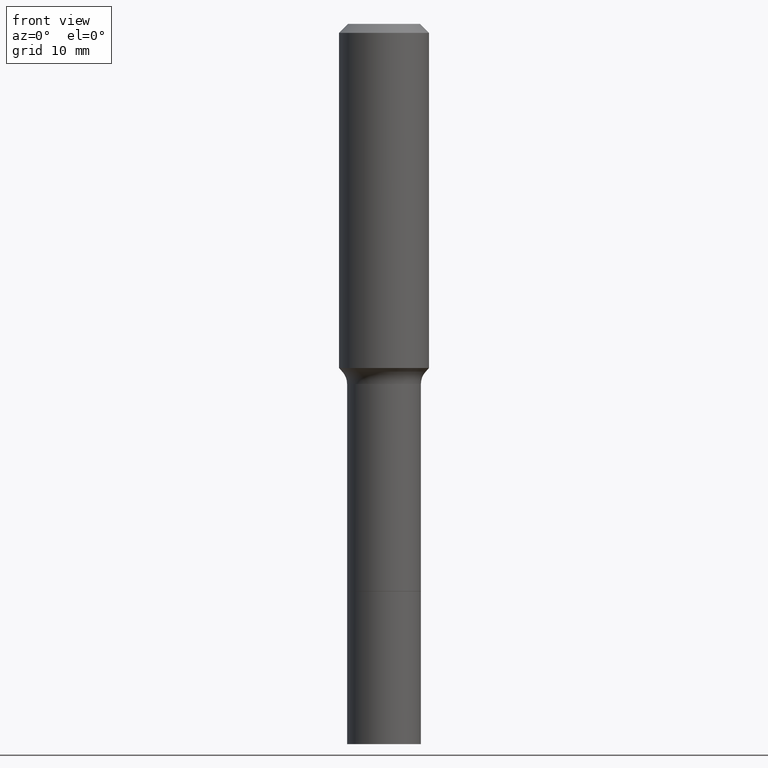
[diagram: clean part render]
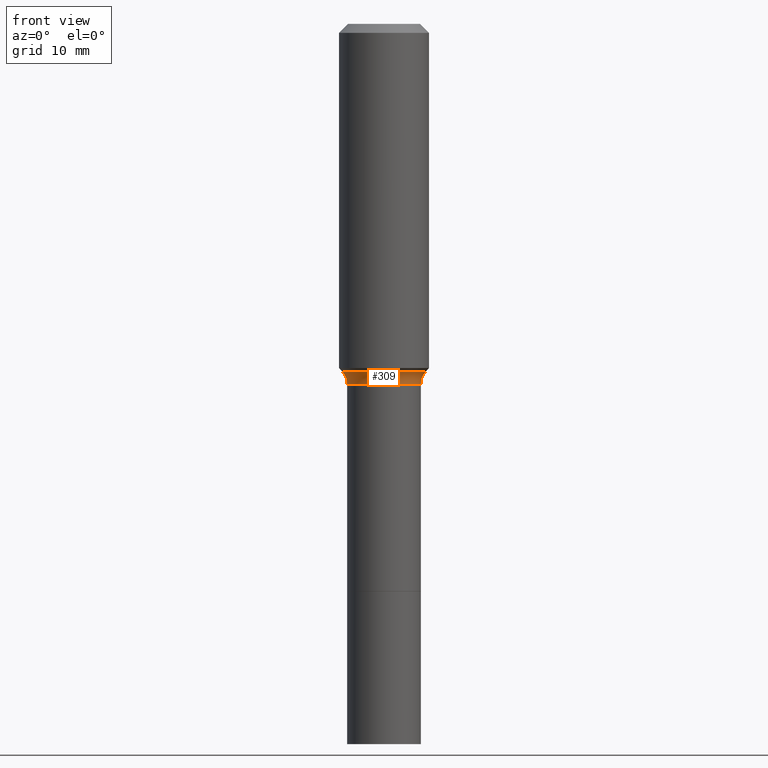
[diagram: same view with one face highlighted and labeled with its STEP entity id]
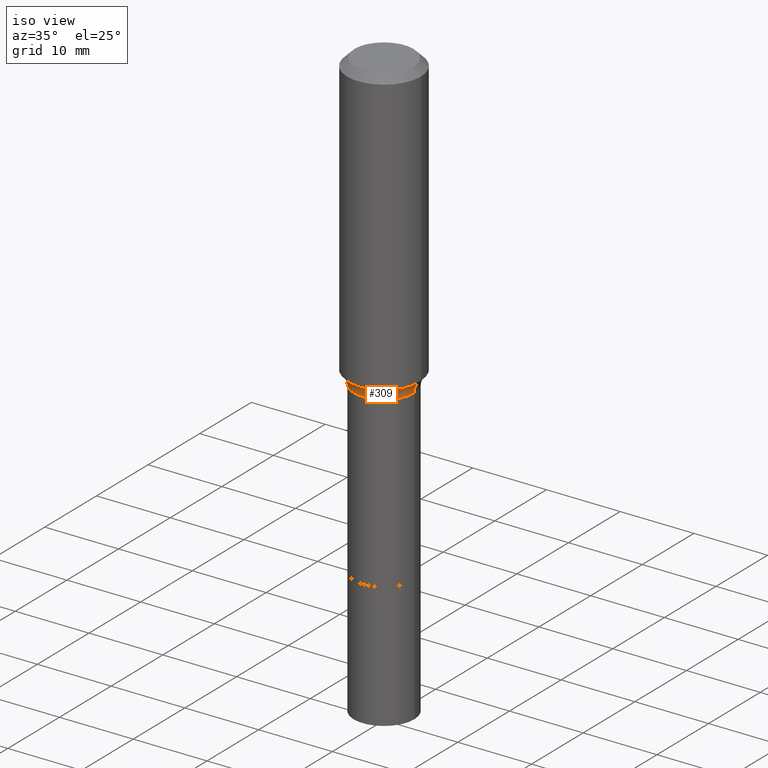
[diagram: same view with one face highlighted and labeled with its STEP entity id]
A machine part, front view. The second image highlights one B-rep face of the part: STEP entity #309.
A second angle (iso view) of the same face is appended — the face is thin or edge-on in the first view.
In plain terms, the highlighted toroidal blend (fillet) surface has major radius 6.1316 mm and minor (blend) radius 2.032 mm.
Its self-contained STEP definition (entity closure, byte-faithful):
#6 = DIRECTION ( 'NONE',  ( 1.000000000000000000, -6.982962677686265133E-15, 4.883557194083112340E-29 ) ) ;
#13 = CARTESIAN_POINT ( 'NONE',  ( 0.2413999999999999202, -7.183373706535882142E-15, -1.574600000000000222 ) ) ;
#33 = CARTESIAN_POINT ( 'NONE',  ( 3.717210724986935455E-29, -5.307191752360029493E-15, -1.520040131195000033 ) ) ;
#48 = VERTEX_POINT ( 'NONE', #431 ) ;
#49 = DIRECTION ( 'NONE',  ( -6.982962677686266711E-15, -1.000000000000000000, 3.491481338843145583E-15 ) ) ;
#62 = CIRCLE ( 'NONE', #458, 0.1613999999999998769 ) ;
#65 = DIRECTION ( 'NONE',  ( -2.445468806185136597E-29, 3.491481338843145583E-15, 1.000000000000000000 ) ) ;
#75 = EDGE_CURVE ( 'NONE', #101, #467, #280, .T. ) ;
#78 = CIRCLE ( 'NONE', #386, 0.08000000000000009881 ) ;
#92 = VERTEX_POINT ( 'NONE', #518 ) ;
#101 = VERTEX_POINT ( 'NONE', #278 ) ;
#106 = CARTESIAN_POINT ( 'NONE',  ( 3.850635182219116347E-29, -5.497686516142417553E-15, -1.574600000000000222 ) ) ;
#131 = ORIENTED_EDGE ( 'NONE', *, *, #420, .F. ) ;
#133 = EDGE_CURVE ( 'NONE', #48, #92, #62, .T. ) ;
#179 = AXIS2_PLACEMENT_3D ( 'NONE', #412, #366, #6 ) ;
#187 = ORIENTED_EDGE ( 'NONE', *, *, #354, .T. ) ;
#209 = DIRECTION ( 'NONE',  ( -2.445468806185136597E-29, 3.491481338843145583E-15, 1.000000000000000000 ) ) ;
#224 = EDGE_LOOP ( 'NONE', ( #299, #187, #418, #131 ) ) ;
#231 = AXIS2_PLACEMENT_3D ( 'NONE', #33, #209, #507 ) ;
#262 = AXIS2_PLACEMENT_3D ( 'NONE', #13, #49, #371 ) ;
#278 = CARTESIAN_POINT ( 'NONE',  ( -0.1828917038704662990, -4.007668036200557411E-15, -1.520040131195000033 ) ) ;
#280 = CIRCLE ( 'NONE', #231, 0.1828917038704662712 ) ;
#291 = DIRECTION ( 'NONE',  ( 7.105427357601001859E-15, 1.000000000000000000, -3.491481338843145583E-15 ) ) ;
#299 = ORIENTED_EDGE ( 'NONE', *, *, #75, .F. ) ;
#309 = ADVANCED_FACE ( 'NONE', ( #363 ), #448, .F. ) ;
#354 = EDGE_CURVE ( 'NONE', #101, #48, #78, .T. ) ;
#363 = FACE_OUTER_BOUND ( 'NONE', #224, .T. ) ;
#366 = DIRECTION ( 'NONE',  ( -2.445468806185136597E-29, 3.491481338843145583E-15, 1.000000000000000000 ) ) ;
#371 = DIRECTION ( 'NONE',  ( 1.000000000000000000, -6.982962677686263555E-15, 0.000000000000000000 ) ) ;
#379 = CIRCLE ( 'NONE', #262, 0.08000000000000009881 ) ;
#386 = AXIS2_PLACEMENT_3D ( 'NONE', #457, #291, #415 ) ;
#409 = CARTESIAN_POINT ( 'NONE',  ( 0.1828917038704662990, -6.584317694545944374E-15, -1.520040131195000033 ) ) ;
#412 = CARTESIAN_POINT ( 'NONE',  ( 3.850635182219116347E-29, -5.497686516142417553E-15, -1.574600000000000222 ) ) ;
#415 = DIRECTION ( 'NONE',  ( -1.000000000000000000, 7.105427357601001859E-15, 0.000000000000000000 ) ) ;
#418 = ORIENTED_EDGE ( 'NONE', *, *, #133, .T. ) ;
#420 = EDGE_CURVE ( 'NONE', #467, #92, #379, .T. ) ;
#431 = CARTESIAN_POINT ( 'NONE',  ( -0.1613999999999998769, -5.931638716786850924E-15, -1.574600000000000222 ) ) ;
#448 = TOROIDAL_SURFACE ( 'NONE', #179, 0.2413999999999999202, 0.08000000000000009881 ) ;
#457 = CARTESIAN_POINT ( 'NONE',  ( -0.2413999999999999202, -3.782436352017536863E-15, -1.574600000000000222 ) ) ;
#458 = AXIS2_PLACEMENT_3D ( 'NONE', #106, #65, #473 ) ;
#467 = VERTEX_POINT ( 'NONE', #409 ) ;
#473 = DIRECTION ( 'NONE',  ( 1.000000000000000000, -6.982962677686265133E-15, 0.000000000000000000 ) ) ;
#507 = DIRECTION ( 'NONE',  ( 1.000000000000000000, -6.982962677686267499E-15, 0.000000000000000000 ) ) ;
#518 = CARTESIAN_POINT ( 'NONE',  ( 0.1613999999999998769, -6.624736692320980489E-15, -1.574600000000000222 ) ) ;